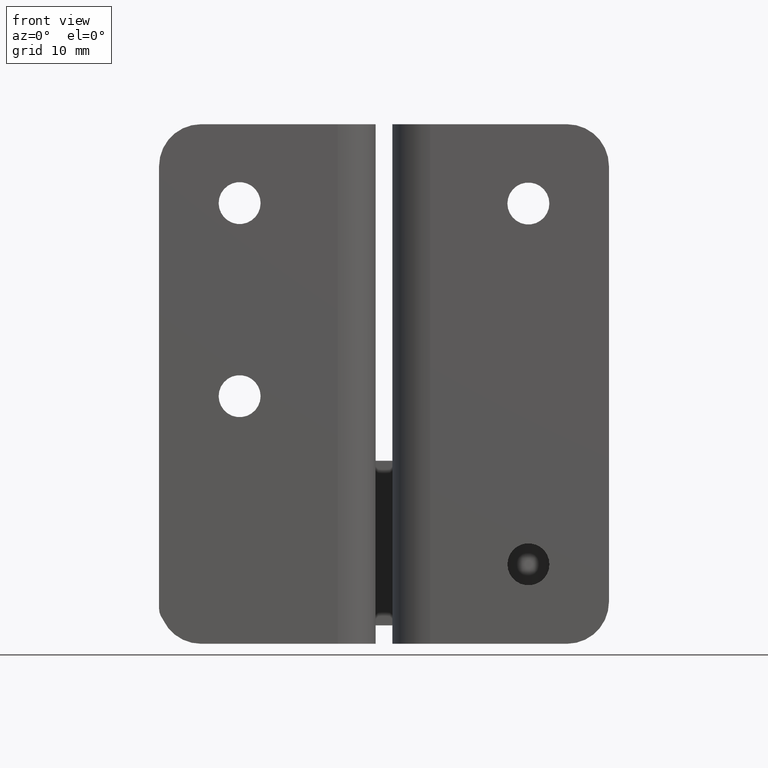
[diagram: clean part render]
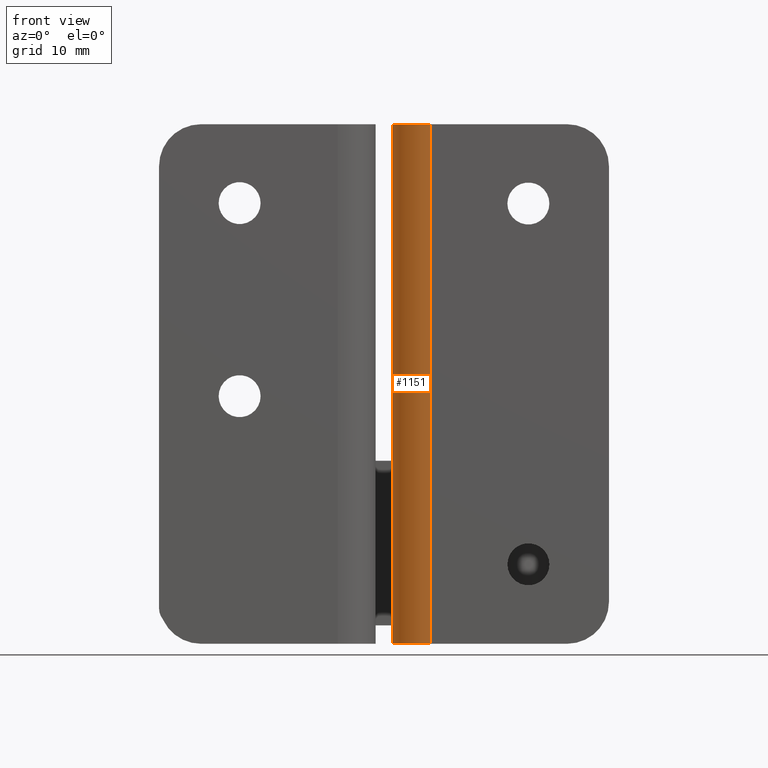
[diagram: same view with one face highlighted and labeled with its STEP entity id]
A machine part, front view. The second image highlights one B-rep face of the part: STEP entity #1151.
In plain terms, the highlighted cylindrical surface (partial cylindrical patch) has radius 4.5 mm, axis along (0, 0, -1).
Its self-contained STEP definition (entity closure, byte-faithful):
#152=FACE_OUTER_BOUND('',#244,.T.);
#244=EDGE_LOOP('',(#944,#945,#946,#947));
#327=LINE('',#1863,#417);
#330=LINE('',#1889,#420);
#417=VECTOR('',#1509,61.9);
#420=VECTOR('',#1538,61.9);
#490=CIRCLE('',#1249,4.5);
#499=CIRCLE('',#1265,4.5);
#575=VERTEX_POINT('',#1850);
#576=VERTEX_POINT('',#1852);
#579=VERTEX_POINT('',#1862);
#589=VERTEX_POINT('',#1888);
#703=EDGE_CURVE('',#576,#575,#490,.T.);
#708=EDGE_CURVE('',#579,#576,#327,.T.);
#719=EDGE_CURVE('',#575,#589,#330,.T.);
#720=EDGE_CURVE('',#589,#579,#499,.T.);
#944=ORIENTED_EDGE('',*,*,#703,.T.);
#945=ORIENTED_EDGE('',*,*,#719,.T.);
#946=ORIENTED_EDGE('',*,*,#720,.T.);
#947=ORIENTED_EDGE('',*,*,#708,.T.);
#1098=CYLINDRICAL_SURFACE('',#1264,4.5);
#1151=ADVANCED_FACE('',(#152),#1098,.T.);
#1249=AXIS2_PLACEMENT_3D('',#1853,#1499,#1500);
#1264=AXIS2_PLACEMENT_3D('',#1887,#1536,#1537);
#1265=AXIS2_PLACEMENT_3D('',#1890,#1539,#1540);
#1499=DIRECTION('center_axis',(0.,0.,1.));
#1500=DIRECTION('ref_axis',(-0.707106781186547,-0.707106781186548,0.));
#1509=DIRECTION('',(0.,0.,-1.));
#1536=DIRECTION('center_axis',(0.,0.,-1.));
#1537=DIRECTION('ref_axis',(-0.707106781186547,-0.707106781186548,0.));
#1538=DIRECTION('',(0.,0.,1.));
#1539=DIRECTION('center_axis',(0.,0.,-1.));
#1540=DIRECTION('ref_axis',(-0.707106781186547,-0.707106781186548,0.));
#1850=CARTESIAN_POINT('',(4.49999999999999,0.,-61.9));
#1852=CARTESIAN_POINT('',(-3.58209188750601E-15,4.5,-61.9));
#1853=CARTESIAN_POINT('Origin',(4.49999999999999,4.5,-61.9));
#1862=CARTESIAN_POINT('',(-3.58209188750601E-15,4.5,0.));
#1863=CARTESIAN_POINT('',(-3.33066907387547E-15,4.5,0.));
#1887=CARTESIAN_POINT('Origin',(4.49999999999999,4.5,0.));
#1888=CARTESIAN_POINT('',(4.49999999999999,0.,0.));
#1889=CARTESIAN_POINT('',(4.49999999999999,0.,0.));
#1890=CARTESIAN_POINT('Origin',(4.49999999999999,4.5,0.));